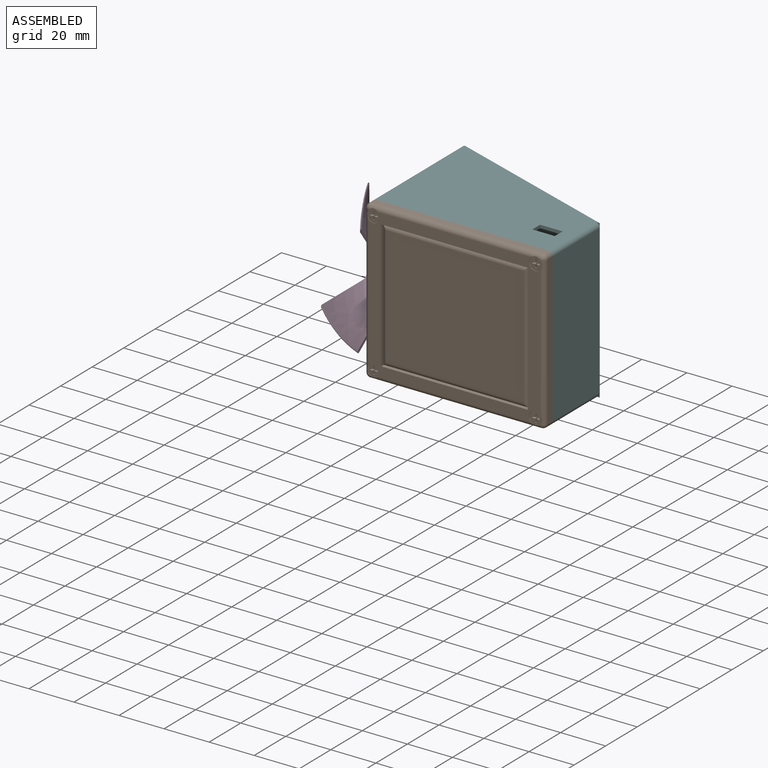
[diagram: assembled view]
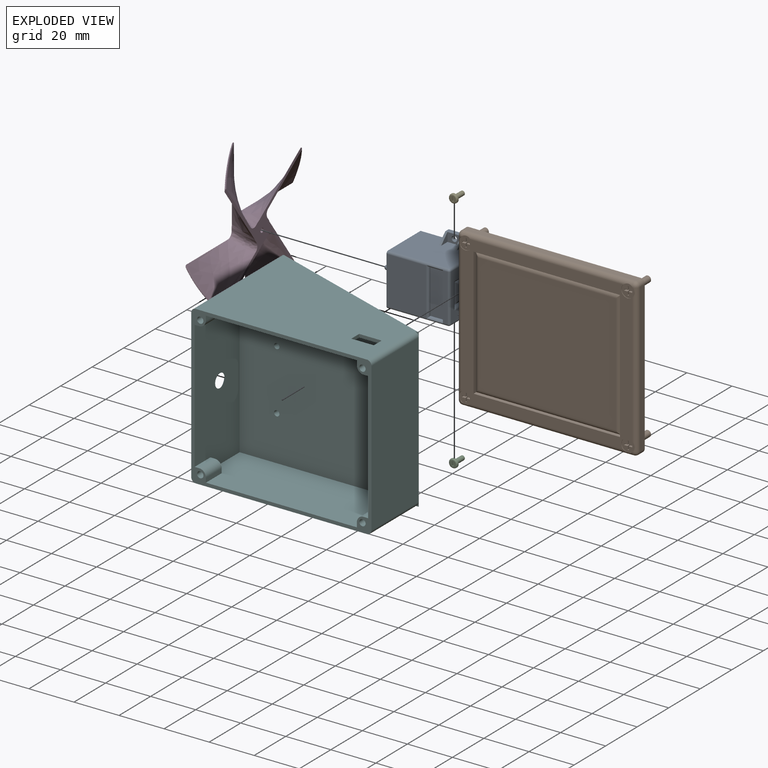
[diagram: exploded view]
GUIDED TOUR — MATED ASSEMBLY WITH SUBASSEMBLIES (Onshape document ab6bb87379f36e90b75c5dd7, AutoMate assembly ab6bb87379f36e90b75c5dd7_9b15f9d7cb4c715bf9bfc902_723ae6bca913845a0ec390ba_default)

This assembly has 15 component occurrences arranged in 6 top-level units: 4 individual components plus 2 subassemblies (S0, S1). The tour has two levels: first the top level, where each subassembly is treated as one rigid unit; then each subassembly is toured internally in its own section (nesting deeper than one subassembly level is flattened into its subassembly's section).

Components are labeled P0..P14 across the whole record; subassembly units are labeled S0..S1. A mate is a constraint between two units; its type names the relative motion it leaves free:
  FASTENED — locks the two components together rigidly (no relative motion).
Axis/direction vectors are unit vectors and 'through' points are millimeter coordinates, both in the assembly's world frame.

TOP-LEVEL MATES (between units; each subassembly's internal mates are listed in its own section)
  1. FASTENED "Fastened 1": S0 <-> P9, direction (0.000, 1.000, 0.000) through (-19.87, 3.13, -12.89) mm
  2. FASTENED "Fastened 3": P5 <-> S0, direction (0.000, 1.000, 0.000) through (-19.87, 0.93, 14.11) mm
  3. FASTENED "Fastened 6": P4 <-> S0, direction (1.000, 0.000, 0.000) through (-37.87, -9.42, 0.61) mm
  4. FASTENED "Fastened 4": P3 <-> S0, direction (0.000, 1.000, 0.000) through (-19.87, 0.93, -12.89) mm

TOP-LEVEL ASSEMBLY ORDER
  1. S0 — the base component [order heuristic]
  2. S1 — core [order heuristic]
  3. P9 — core [order heuristic]
  4. P4 [order verified]
  5. P5 [order verified]
  6. P3 [order verified]
(P4 verified with a relaxed clearance tolerance: the source model stores slight part interference there.)
Order-tag legend:
  [order verified] — this step's position reverses a verified removal order: the component was checked to insert without passing through the ones already placed.
  [order heuristic] — the first 3 components form the assembly's core: parts whose collision-free extraction could not be verified, listed in mate-graph order.

Of the 15 component occurrences, 7 carry the full construction recipe — the FeatureScript program that regenerates the part's solid from scratch; the rest are supplied as boundary geometry only. Each toured unit is shown spotlighted twice — assembled, then exploded with a leader line back to its socket (green = recipe-attached component, orange = geometry-only, blue = subassembly unit; the rest desaturated gray).
NOTE — this tour is split across 2 documents so each fits a 32k-token context. This is document 1: the component sections continue in the remaining 1 document, each repeating the header above.
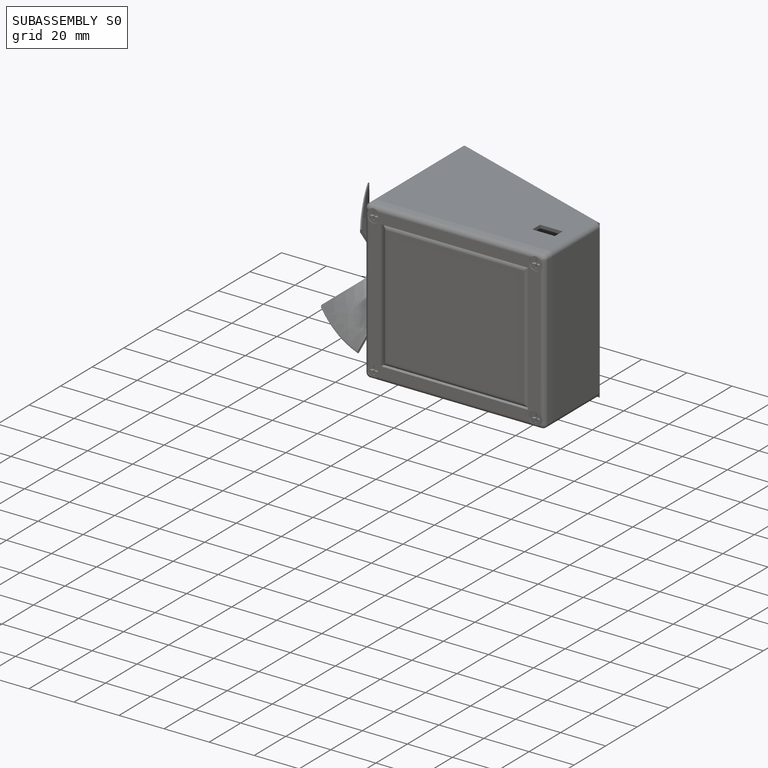
[diagram: subassembly S0 — assembled]
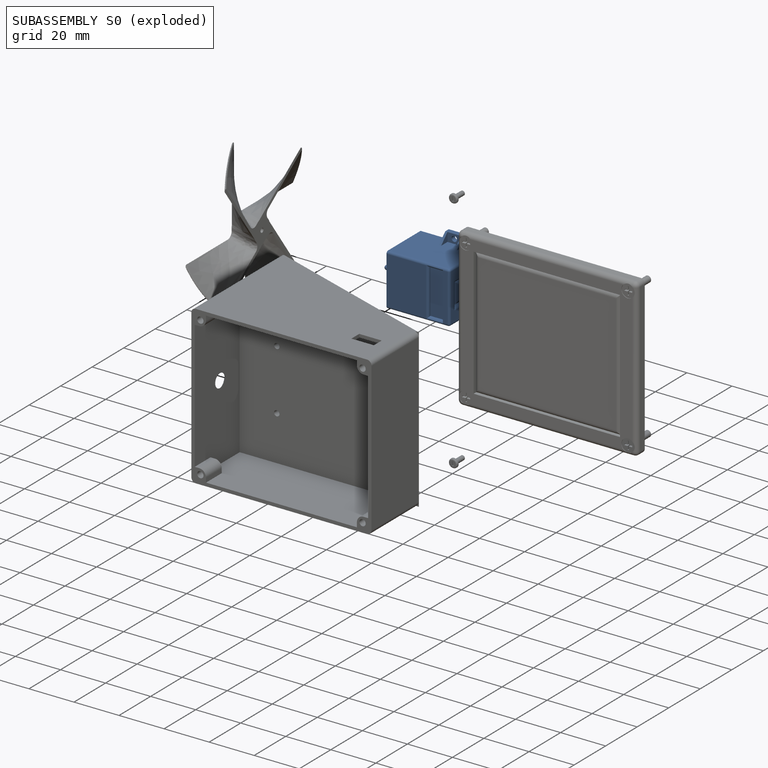
[diagram: subassembly S0 — exploded]
SUBASSEMBLY S0 — 5 components (P0, P7, P10, P11, P13), of which 1 recipe-attached; toured below.
Held by: FASTENED mate "Fastened 1" to P9; FASTENED mate "Fastened 3" to P5; FASTENED mate "Fastened 6" to P4; FASTENED mate "Fastened 4" to P3.
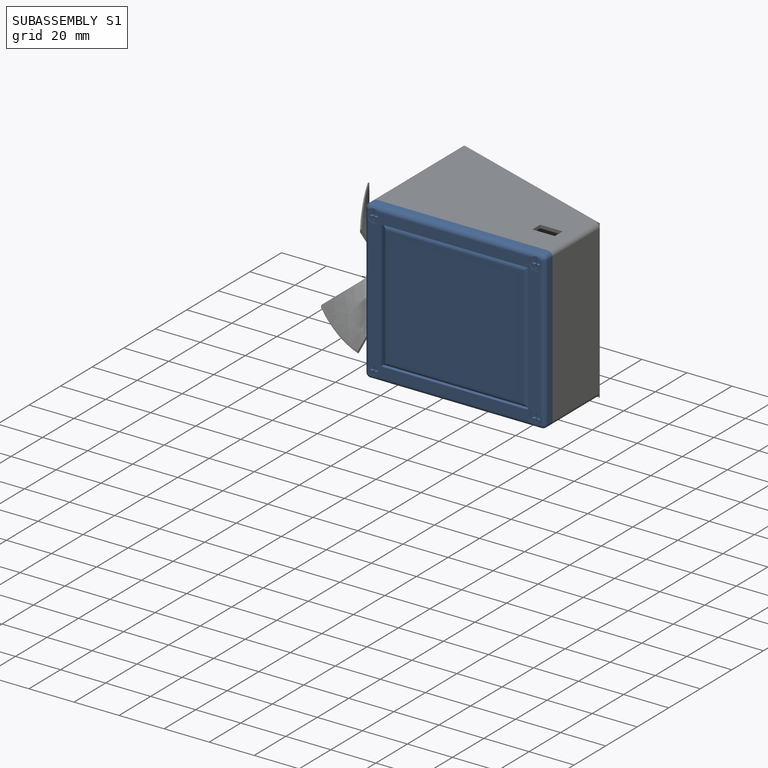
[diagram: subassembly S1 — assembled]
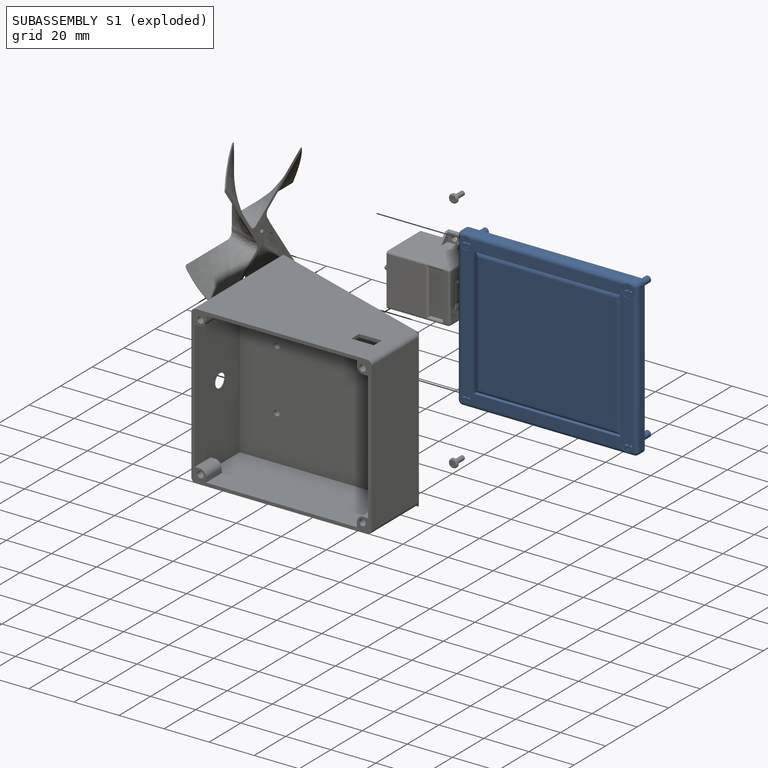
[diagram: subassembly S1 — exploded]
SUBASSEMBLY S1 — 6 components (P1, P2, P6, P8, P12, P14), of which 6 recipe-attached; toured below.
Held by: no mates (free).
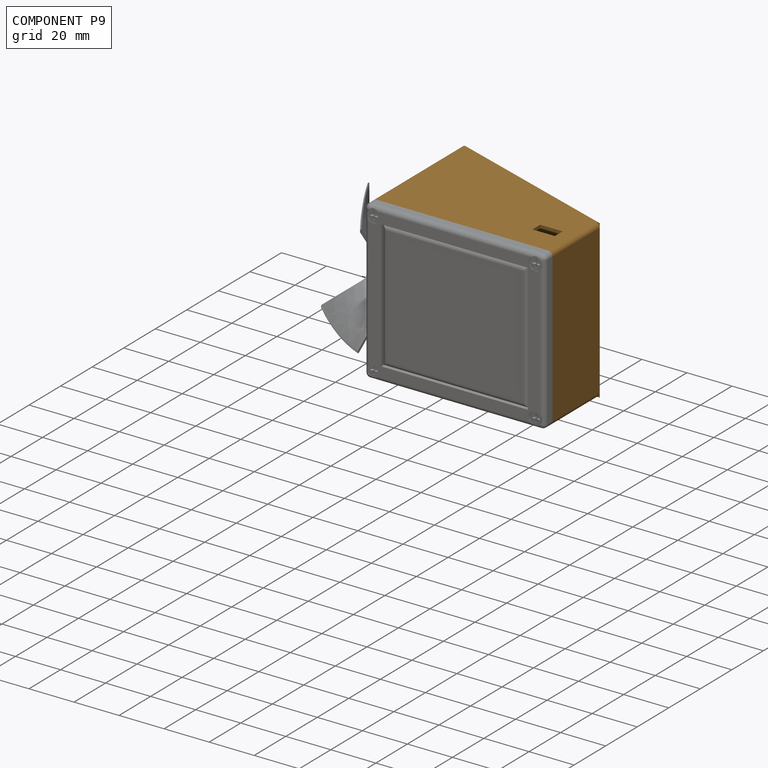
[diagram: component P9 — assembled]
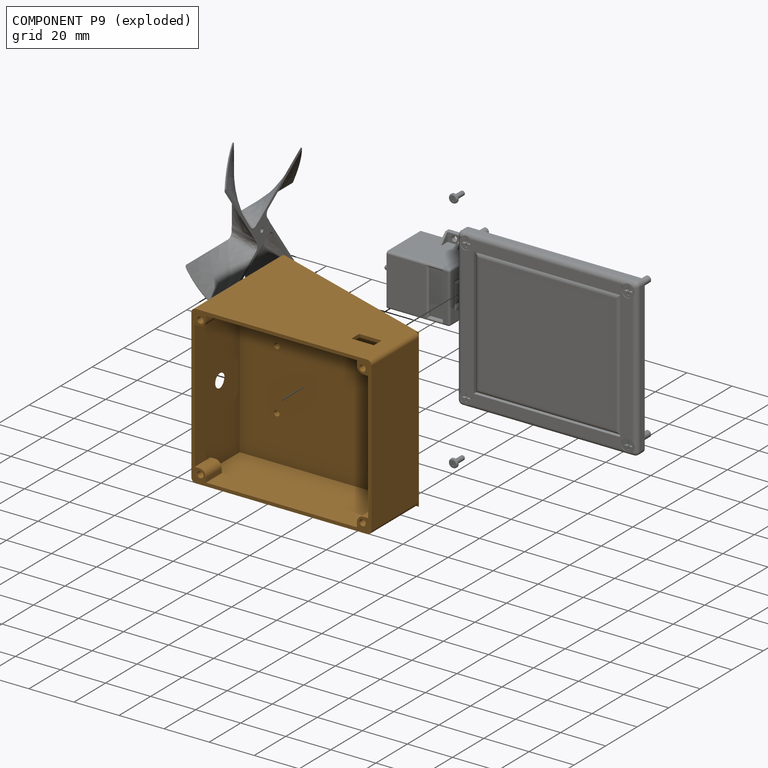
[diagram: component P9 — exploded]
COMPONENT P9 — geometry summary (no construction recipe available for this part):
  bounding box: 80.0 x 70.0 x 57.0 mm
  B-rep topology: 1 solid, 54 faces, 286 edges
  volume: 34951 mm^3 (11% of its bounding box)
Held by: FASTENED mate "Fastened 1" to P0.
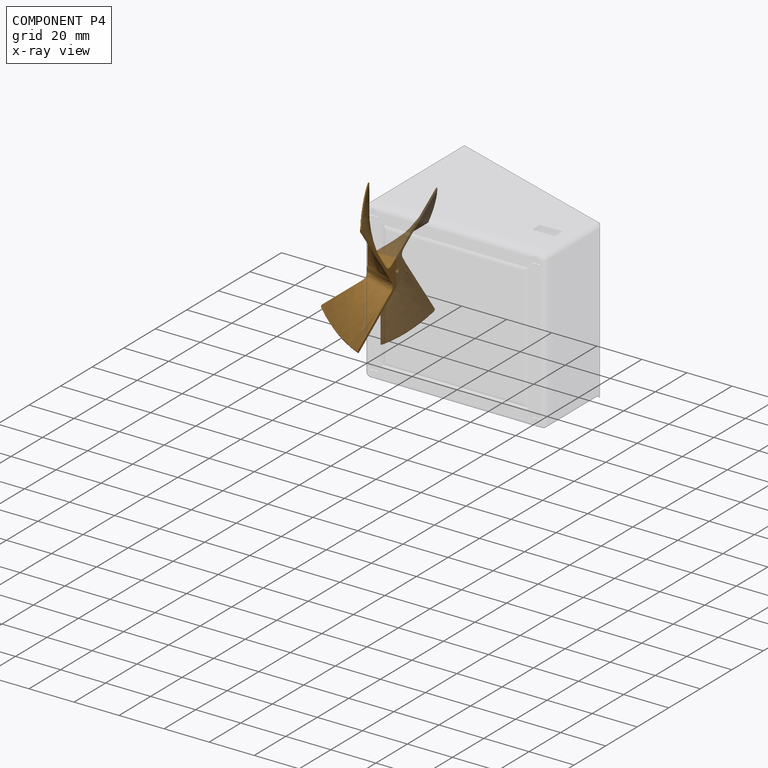
[diagram: component P4 — x-ray view]
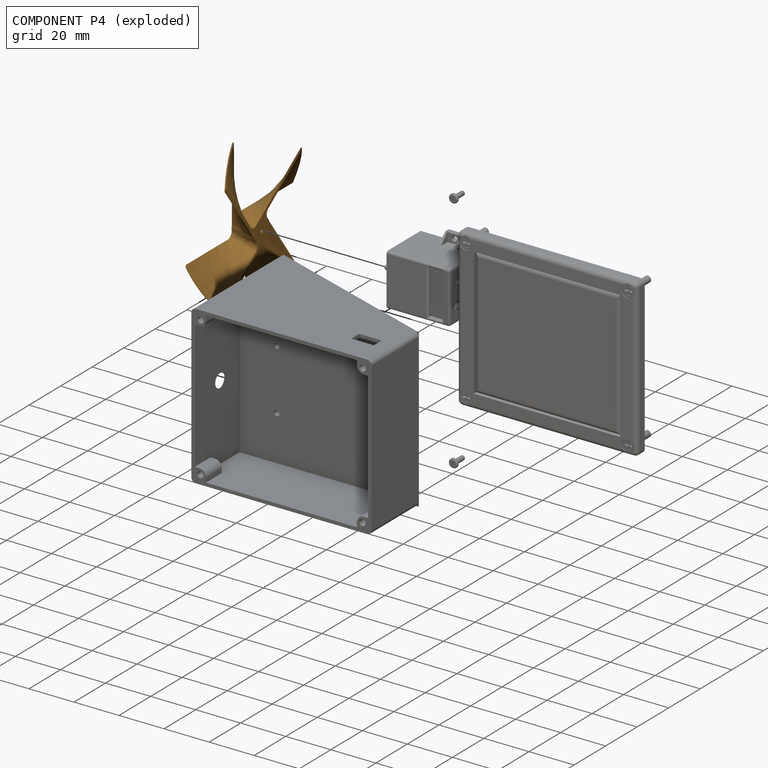
[diagram: component P4 — exploded]
COMPONENT P4 — geometry summary (no construction recipe available for this part):
  bounding box: 89.4 x 89.4 x 34.4 mm
  B-rep topology: 1 solid, 29 faces, 155 edges
  volume: 2391 mm^3 (1% of its bounding box)
  symmetry: 4-fold rotationally symmetric about the z axis
Held by: FASTENED mate "Fastened 6" to P0.
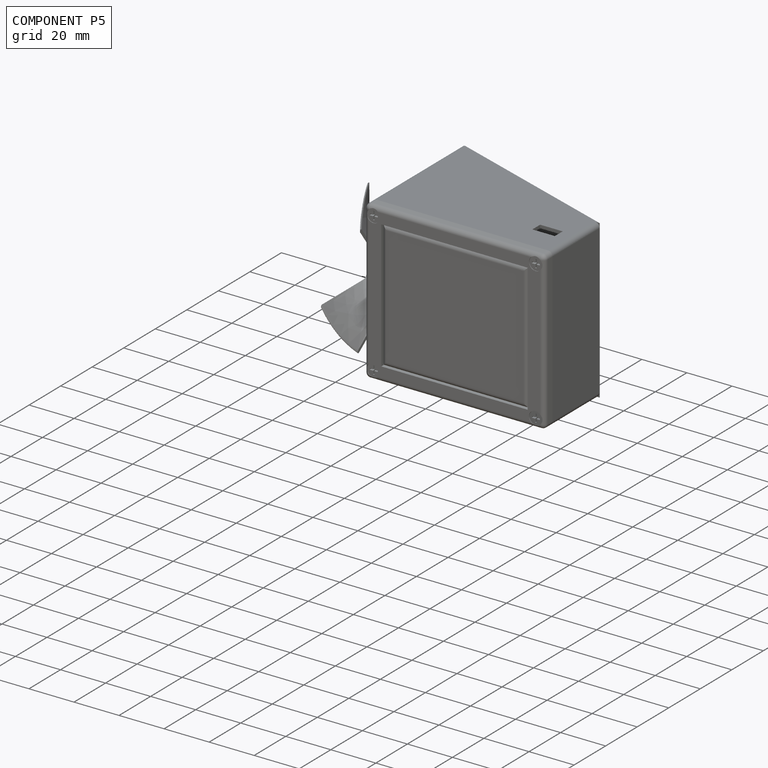
[diagram: component P5 — assembled]
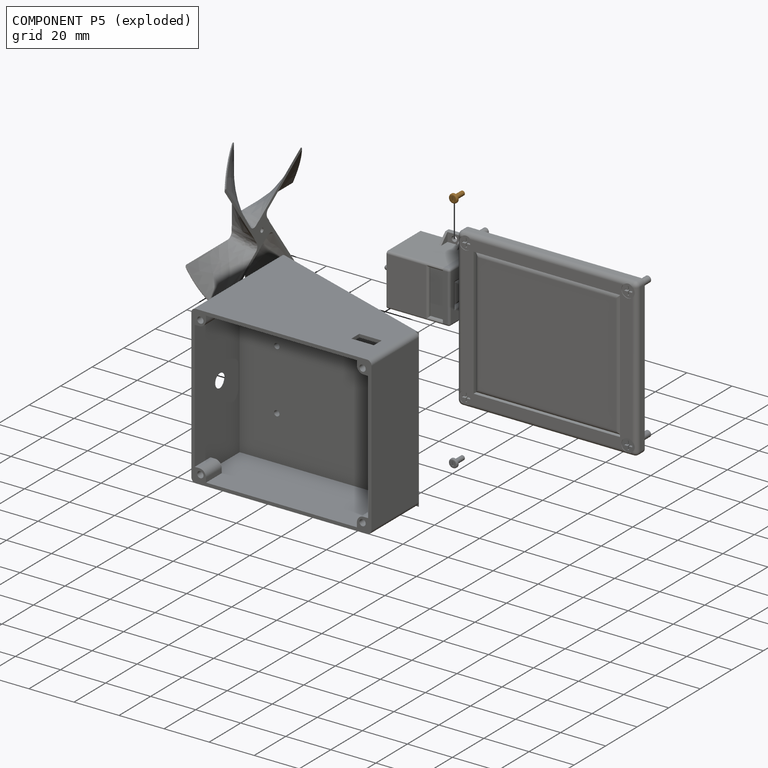
[diagram: component P5 — exploded]
COMPONENT P5 — geometry summary (no construction recipe available for this part):
  bounding box: 6.3 x 4.2 x 4.2 mm
  B-rep topology: 1 solid, 11 faces, 42 edges
  volume: 27 mm^3 (24% of its bounding box)
  symmetry: 2-fold rotationally symmetric about the y axis; mirror-symmetric across its x mid-plane, z mid-plane
Held by: FASTENED mate "Fastened 3" to P0.
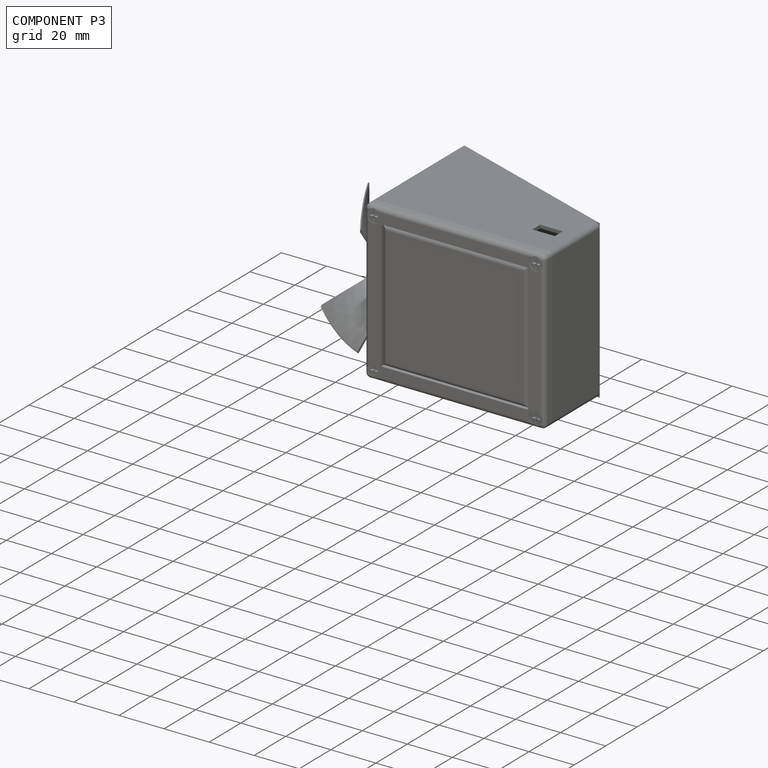
[diagram: component P3 — assembled]
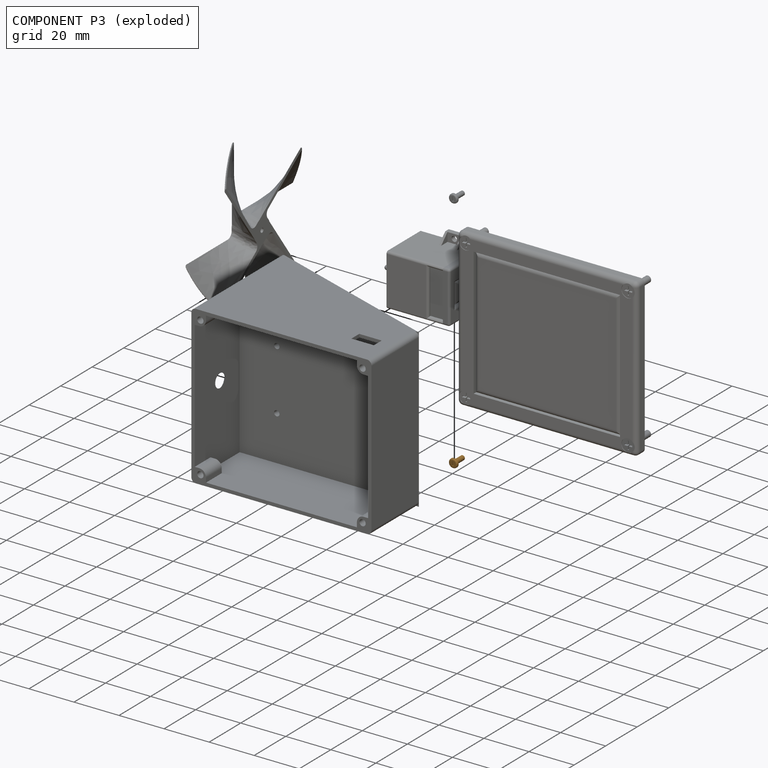
[diagram: component P3 — exploded]
COMPONENT P3 — geometry summary (no construction recipe available for this part):
  bounding box: 6.3 x 4.2 x 4.2 mm
  B-rep topology: 1 solid, 11 faces, 42 edges
  volume: 27 mm^3 (24% of its bounding box)
  symmetry: 2-fold rotationally symmetric about the y axis; mirror-symmetric across its x mid-plane, z mid-plane
Held by: FASTENED mate "Fastened 4" to P0.
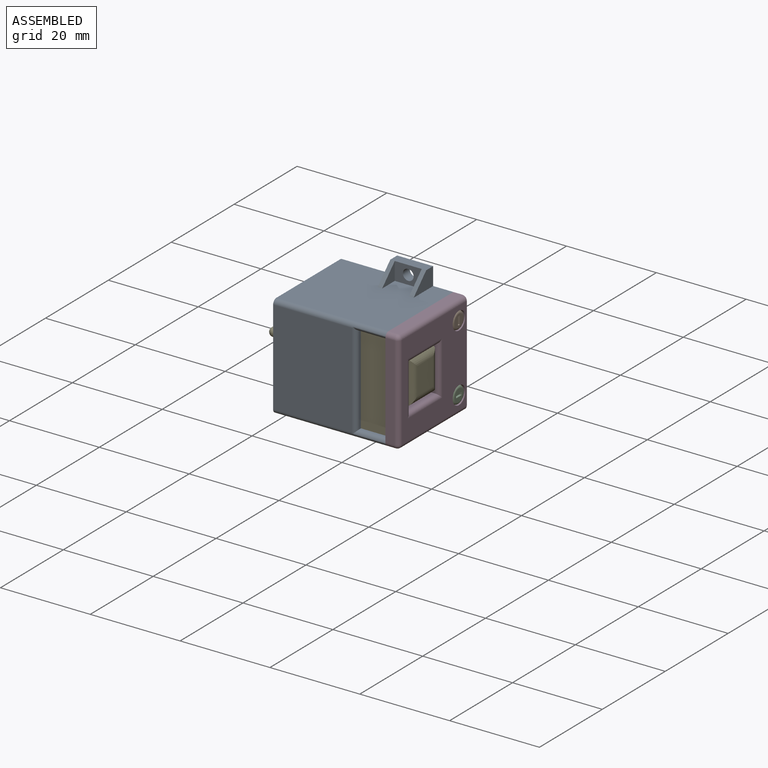
[diagram: subassembly S0 — assembled view]
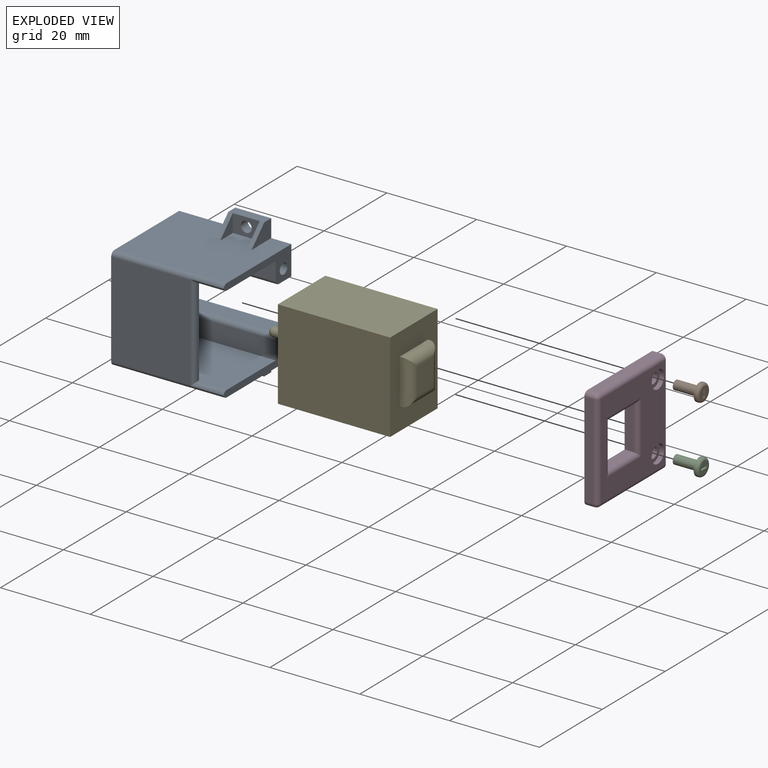
[diagram: subassembly S0 — exploded view]
SUBASSEMBLY S0 TOUR — 5 components, shown here in isolation at its own camera.

INTERNAL MATES
  1. FASTENED "Fastened 2": P11 <-> P0, direction (-1.000, 0.000, 0.000) through (-11.37, 0.63, 8.11) mm
  2. FASTENED "Fastened 2": P10 <-> P11, direction (-1.000, 0.000, 0.000) through (-9.37, 0.63, -6.89) mm
  3. FASTENED "Fastened 3": P7 <-> P11, direction (-1.000, 0.000, 0.000) through (-9.37, 0.63, 8.11) mm
  4. FASTENED "Fastened 4": P13 <-> P0, direction (0.000, -1.000, 0.000) through (-23.87, -16.97, 0.61) mm

ASSEMBLY ORDER (within the subassembly)
  1. P13 — the base component [order verified]
  2. P0 [order verified]
  3. P11 [order verified]
  4. P7 [order verified]
  5. P10 [order verified]
Order-tag legend:
  [order verified] — this step's position reverses a verified removal order: the component was checked to insert without passing through the ones already placed.
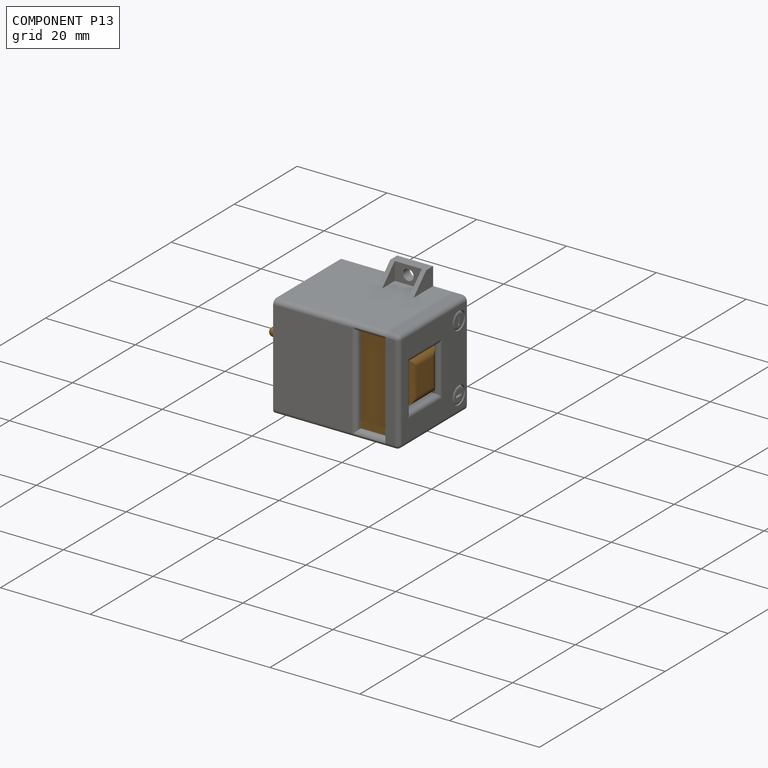
[diagram: component P13 — assembled]
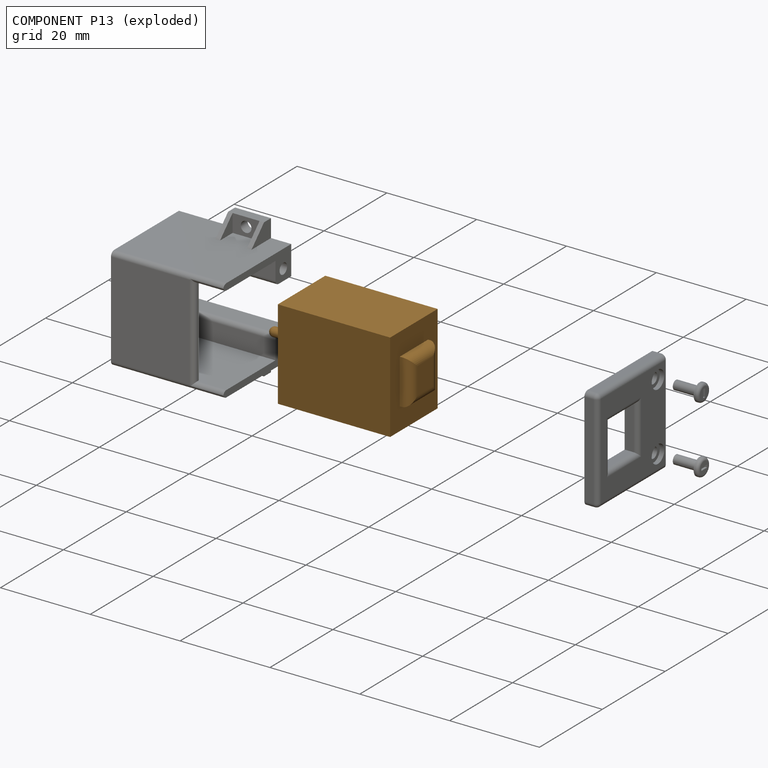
[diagram: component P13 — exploded]
COMPONENT P13 — geometry summary (no construction recipe available for this part):
  bounding box: 34.5 x 20.0 x 15.1 mm
  B-rep topology: 1 solid, 19 faces, 81 edges
  volume: 7804 mm^3 (75% of its bounding box)
  symmetry: 2-fold rotationally symmetric about the y axis; mirror-symmetric across its x mid-plane, z mid-plane
Held by: FASTENED mate "Fastened 4" to P0.
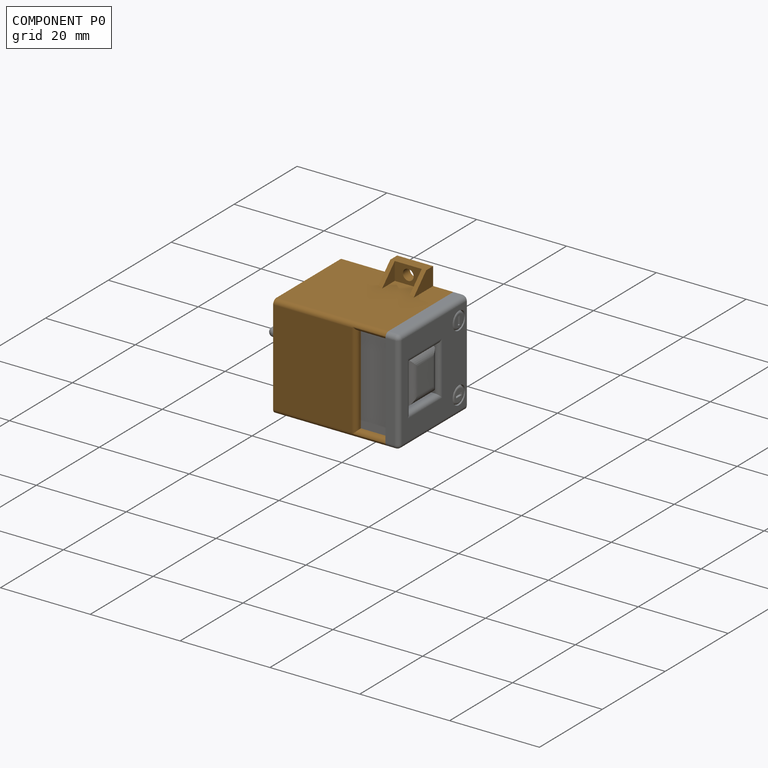
[diagram: component P0 — assembled]
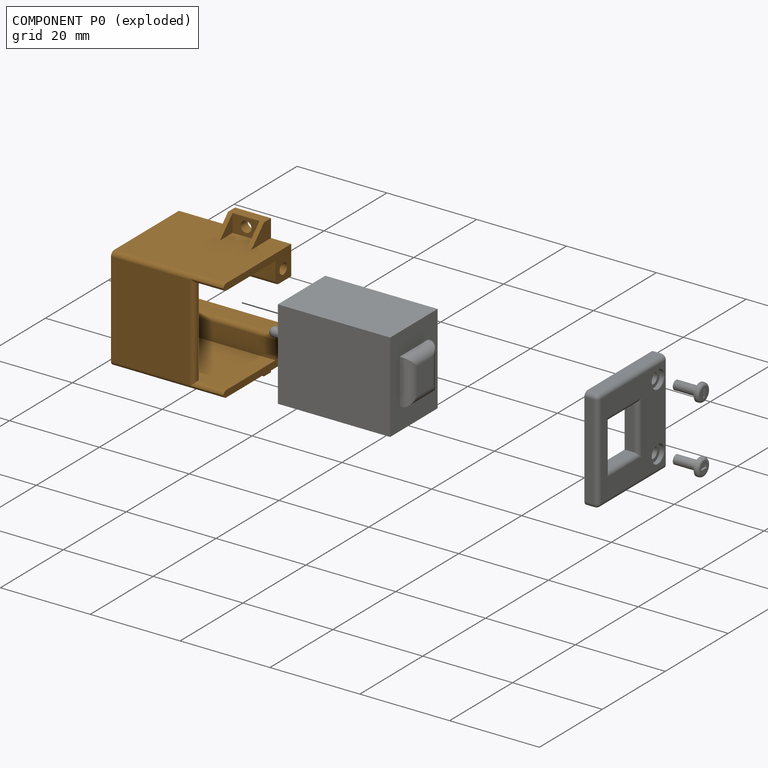
[diagram: component P0 — exploded]
COMPONENT P0 — geometry summary (no construction recipe available for this part):
  bounding box: 31.0 x 25.0 x 21.6 mm
  B-rep topology: 1 solid, 45 faces, 240 edges
  volume: 3511 mm^3 (21% of its bounding box)
  symmetry: mirror-symmetric across its x mid-plane
Held by: FASTENED mate "Fastened 2" to P11; FASTENED mate "Fastened 4" to P13.
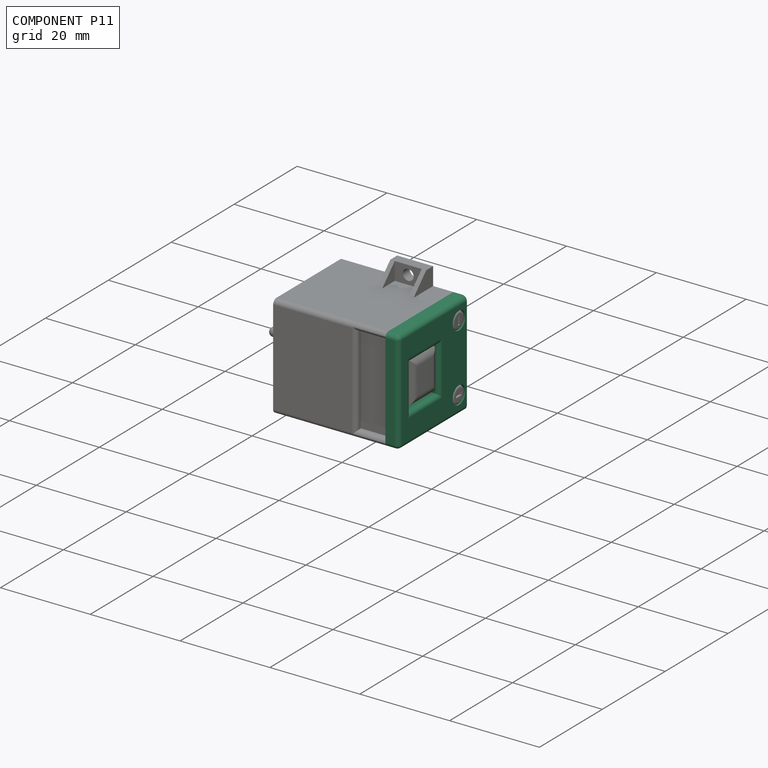
[diagram: component P11 — assembled]
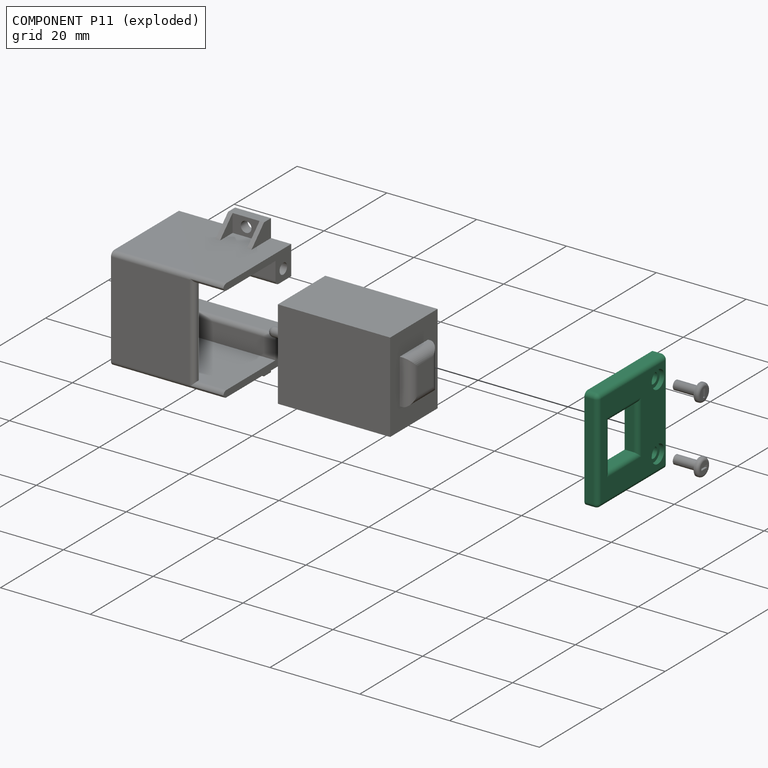
[diagram: component P11 — exploded]
COMPONENT P11 — recipe-attached (CADFS 00412371, mesh-verified: the recipe's output STEP matches this component's geometry to below the mesh-comparison resolution (tessellation chordal tolerance ~0.0475 mm)).
Held by: FASTENED mate "Fastened 2" to P0; FASTENED mate "Fastened 2" to P10; FASTENED mate "Fastened 3" to P7.
Construction recipe (FeatureScript — the CAD program that rebuilds this solid; sketch coordinates are in the units given by the * unit suffixes, e.g. mm):

FeatureScript 1511;
import(path : "onshape/std/geometry.fs", version : "1511.0");
import(path : "onshape/std/common.fs", version : "1511.0");
const mm = millimeter;
const VERTEX = EntityType.VERTEX;
const EDGE = EntityType.EDGE;
const FACE = EntityType.FACE;
const BODY = EntityType.BODY;
function v(x, y){return vector(x, y);}
function OD(order){return orderDisambiguation(order);}
function OSD(set){return originalSetDisambiguation(set);}
function TD(topology){return topologyDisambiguation(topology);}
function TDD(query){return trueDependencyDisambiguation(query);}
function sQuery(a, b, c) {return sketchEntityQuery(a, b, c);}

annotation { "Feature Type Name" : "Feature", "Feature Type Description" : "" }
export const myFeature = defineFeature(function(context is Context, id is Id, definition is map)
    precondition{}
    {
        {
            var Q0;
            Q0=qCreatedBy(makeId("Front.planeOp"),FACE);
            var sketch = newSketch(context, id + "F0", { "sketchPlane" : qUnion([Q0])});
            skLineSegment(sketch, "E0.bottom", {"start": v(11.5, -10.8) * mm, "end": v(-11.5, -10.8) * mm});
            skLineSegment(sketch, "E0.top", {"start": v(11.5, 10.8) * mm, "end": v(-11.5, 10.8) * mm});
            skLineSegment(sketch, "E0.left", {"start": v(11.5, -10.8) * mm, "end": v(11.5, 10.8) * mm});
            skLineSegment(sketch, "E0.right", {"start": v(-11.5, -10.8) * mm, "end": v(-11.5, 10.8) * mm});
            skPoint(sketch, "E0.middle", {"position": v(0, 0) * mm});
            skLineSegment(sketch, "E1", {"start": v(11.5, -5.8) * mm, "end": v(-11.5, -5.8) * mm});
            skLineSegment(sketch, "E2.bottom", {"start": v(5, -2) * mm, "end": v(-5, -2) * mm});
            skLineSegment(sketch, "E2.top", {"start": v(5, 7) * mm, "end": v(-5, 7) * mm});
            skLineSegment(sketch, "E2.left", {"start": v(5, -2) * mm, "end": v(5, 7) * mm});
            skLineSegment(sketch, "E2.right", {"start": v(-5, -2) * mm, "end": v(-5, 7) * mm});
            skPoint(sketch, "E2.middle", {"position": v(0, 2.5) * mm});
            skLineSegment(sketch, "E3", {"start": v(-5, -5.8) * mm, "end": v(-5, -10.8) * mm});
            skLineSegment(sketch, "E4", {"start": v(5, -5.8) * mm, "end": v(5, -10.8) * mm});
            skPoint(sketch, "E5", {"position": v(-7.5, -8.3) * mm});
            skPoint(sketch, "E6", {"position": v(7.5, -8.3) * mm});
            skSolve(sketch);
        }
        {
            var Q0;
            Q0=makeQuery(id+"F0.imprint","IMPRINT",FACE,{"disambiguationData":[TD([[makeQuery(id+"F0.imprint","IMPRINT",EDGE,{"derivedFrom":sQuery(id+"F0.wireOp",EDGE,"E0.bottom")}),-1.0]])]});
            var Q1;
            {var subQ4=sQuery(id+"F0.wireOp",EDGE,"XXghgsD0-yHl0-RBd0-iBPM-BPhgWZTttXul");Q1=makeQuery(id+"F0.imprint","IMPRINT",FACE,{"disambiguationData":[TD([[makeQuery(id+"F0.imprint","IMPRINT",EDGE,{"derivedFrom":subQ4}),1.0]])]});}
            var Q2;
            {var subQ4=sQuery(id+"F0.wireOp",EDGE,"E0.left");var subQ5=sQuery(id+"F0.wireOp",EDGE,"E0.top");var subQ6=makeQuery(id+"F0.imprint","INTERSECT",VERTEX,{"derivedFrom":[subQ5,subQ4]});Q2=makeQuery(id+"F0.imprint","IMPRINT",FACE,{"disambiguationData":[TD([[makeQuery(id+"F0.imprint","IMPRINT",EDGE,{"disambiguationData":[TD([[subQ6,-1.0]])],"derivedFrom":subQ5}),1.0]])]});}
            var Q3;
            {var subQ7=sQuery(id+"F0.wireOp",EDGE,"rV4kGlWL-xtz4-GXx9-zthC-AsMHhICjl7HH");Q3=makeQuery(id+"F0.imprint","IMPRINT",FACE,{"disambiguationData":[TD([[makeQuery(id+"F0.imprint","IMPRINT",EDGE,{"derivedFrom":subQ7}),-1.0]])]});}
            var Q4;
            {var subQ3=sQuery(id+"F0.wireOp",EDGE,"XXghgsD0-yHl0-RBd0-iBPM-BPhgWZTttXul");Q4=makeQuery(id+"F0.imprint","IMPRINT",FACE,{"disambiguationData":[TD([[makeQuery(id+"F0.imprint","IMPRINT",EDGE,{"derivedFrom":subQ3}),-1.0]])]});}
            extrude(context, id + "F1", {"entities" : qUnion([Q0, Q1, Q2, Q3, Q4]), "depth" : 3 * mm});
        }
        {
            var Q0;
            Q0=sQuery(id+"F0.wireOp",VERTEX,"E6");
            var Q1;
            Q1=sQuery(id+"F0.wireOp",VERTEX,"E5");
            var Q2;
            Q2=makeQuery(id+"F1.opExtrude","SWEPT_BODY",BODY,{"disambiguationData":[OSD([sQuery(id+"F0.wireOp",EDGE,"E0.bottom"),sQuery(id+"F0.wireOp",EDGE,"E0.top"),sQuery(id+"F0.wireOp",EDGE,"E0.left"),sQuery(id+"F0.wireOp",EDGE,"E0.right"),sQuery(id+"F0.wireOp",EDGE,"E2.bottom"),sQuery(id+"F0.wireOp",EDGE,"E2.top"),sQuery(id+"F0.wireOp",EDGE,"E2.left"),sQuery(id+"F0.wireOp",EDGE,"E2.right")])]});
            hole(context, id + "F2", {"style" : HoleStyle.C_BORE, "endStyle" : HoleEndStyle.BLIND, "oppositeDirection" : true, "holeDiameter" : 2.4 * mm, "cBoreDiameter" : 4 * mm, "cBoreDepth" : 1 * mm, "holeDepth" : 3 * mm, "locations" : qUnion([Q0, Q1]), "scope" : qUnion([Q2])});
        }
        {
            var Q0;
            Q0=makeQuery(id+"F1.opExtrude","CAP_EDGE",EDGE,{"disambiguationData":[OSD([sQuery(id+"F0.wireOp",EDGE,"E0.right")])],"isStart":true});
            var Q1;
            Q1=makeQuery(id+"F1.opExtrude","CAP_EDGE",EDGE,{"disambiguationData":[OSD([sQuery(id+"F0.wireOp",EDGE,"E0.top")])],"isStart":true});
            var Q2;
            Q2=makeQuery(id+"F1.opExtrude","SWEPT_EDGE",EDGE,{"disambiguationData":[OSD([sQuery(id+"F0.wireOp",EDGE,"E0.top"),sQuery(id+"F0.wireOp",EDGE,"E0.left")])]});
            var Q3;
            Q3=makeQuery(id+"F1.opExtrude","SWEPT_EDGE",EDGE,{"disambiguationData":[OSD([sQuery(id+"F0.wireOp",EDGE,"E0.top"),sQuery(id+"F0.wireOp",EDGE,"E0.right")])]});
            var Q4;
            Q4=makeQuery(id+"F1.opExtrude","CAP_EDGE",EDGE,{"disambiguationData":[OSD([sQuery(id+"F0.wireOp",EDGE,"E0.left")])],"isStart":true});
            var Q5;
            Q5=makeQuery(id+"F1.opExtrude","CAP_EDGE",EDGE,{"disambiguationData":[OSD([sQuery(id+"F0.wireOp",EDGE,"E2.right")])],"isStart":true});
            var Q6;
            Q6=makeQuery(id+"F1.opExtrude","CAP_EDGE",EDGE,{"disambiguationData":[OSD([sQuery(id+"F0.wireOp",EDGE,"E2.top")])],"isStart":true});
            var Q7;
            Q7=makeQuery(id+"F1.opExtrude","CAP_EDGE",EDGE,{"disambiguationData":[OSD([sQuery(id+"F0.wireOp",EDGE,"E2.left")])],"isStart":true});
            var Q8;
            Q8=makeQuery(id+"F1.opExtrude","CAP_EDGE",EDGE,{"disambiguationData":[OSD([sQuery(id+"F0.wireOp",EDGE,"E2.bottom")])],"isStart":true});
            fillet(context, id + "F3", {"entities" : qUnion([Q0, Q1, Q2, Q3, Q4, Q5, Q6, Q7, Q8]), "radius" : 1 * mm, "tangentPropagation" : true, "allowEdgeOverflow" : false});
        }
    });
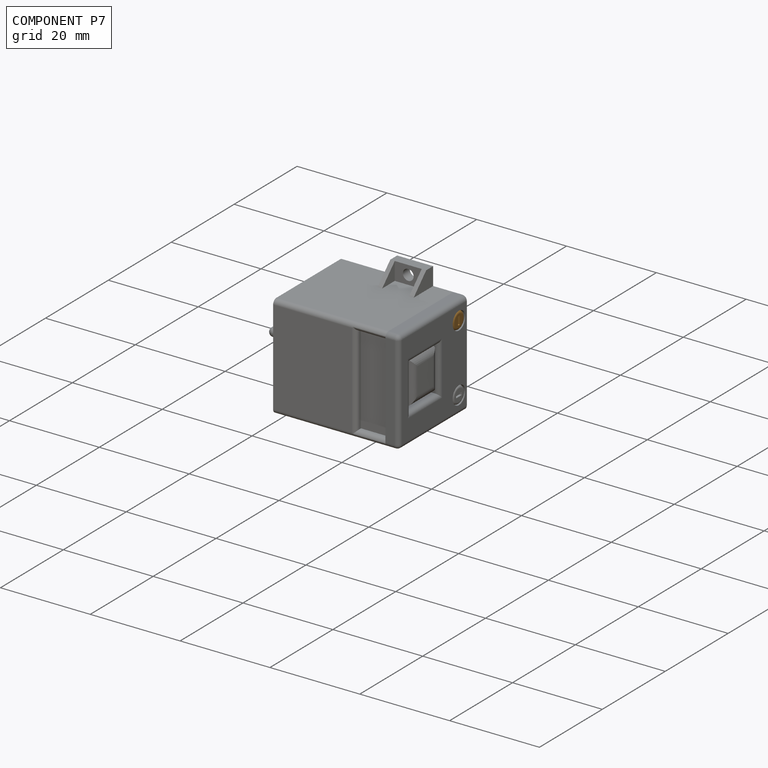
[diagram: component P7 — assembled]
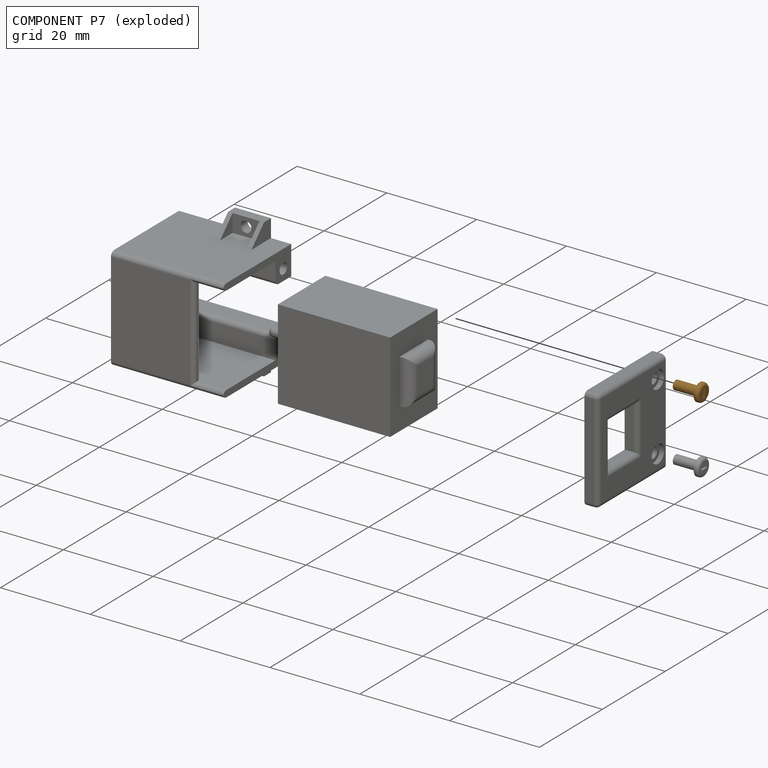
[diagram: component P7 — exploded]
COMPONENT P7 — geometry summary (no construction recipe available for this part):
  bounding box: 6.3 x 4.2 x 4.2 mm
  B-rep topology: 1 solid, 11 faces, 42 edges
  volume: 27 mm^3 (24% of its bounding box)
  symmetry: 2-fold rotationally symmetric about the y axis; mirror-symmetric across its x mid-plane, z mid-plane
Held by: FASTENED mate "Fastened 3" to P11.
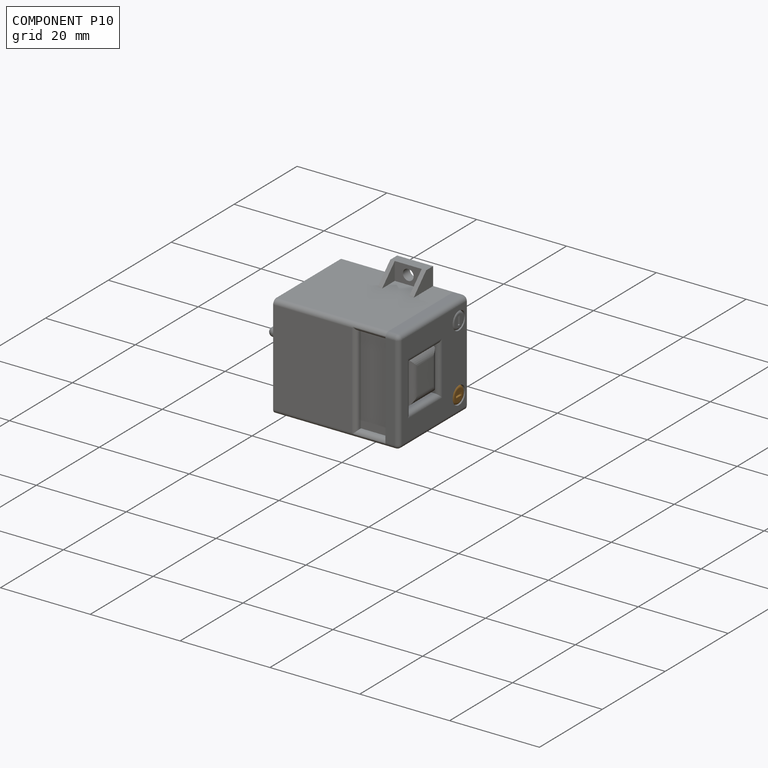
[diagram: component P10 — assembled]
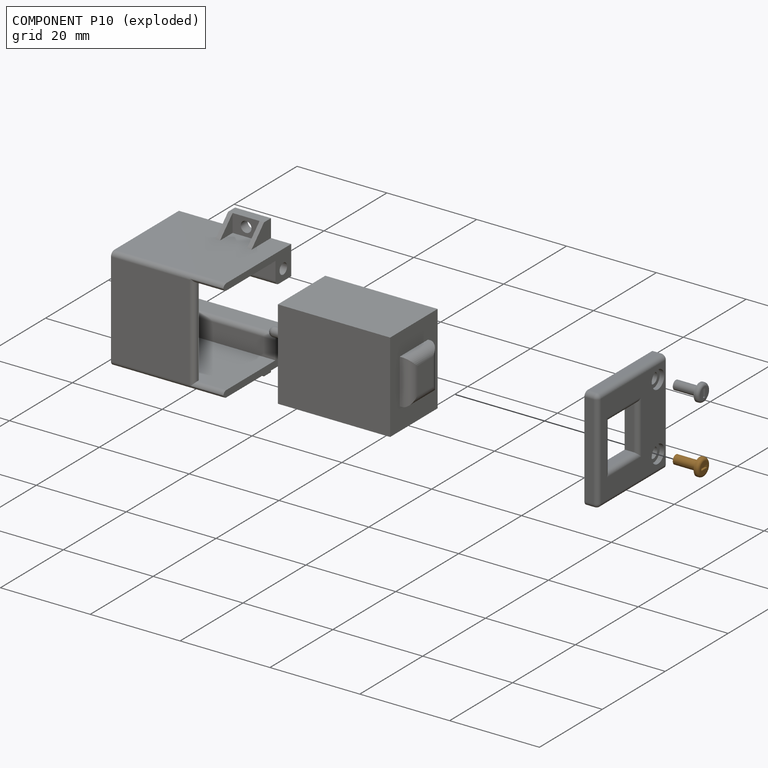
[diagram: component P10 — exploded]
COMPONENT P10 — geometry summary (no construction recipe available for this part):
  bounding box: 6.3 x 4.2 x 4.2 mm
  B-rep topology: 1 solid, 11 faces, 42 edges
  volume: 27 mm^3 (24% of its bounding box)
  symmetry: 2-fold rotationally symmetric about the y axis; mirror-symmetric across its x mid-plane, z mid-plane
Held by: FASTENED mate "Fastened 2" to P11.
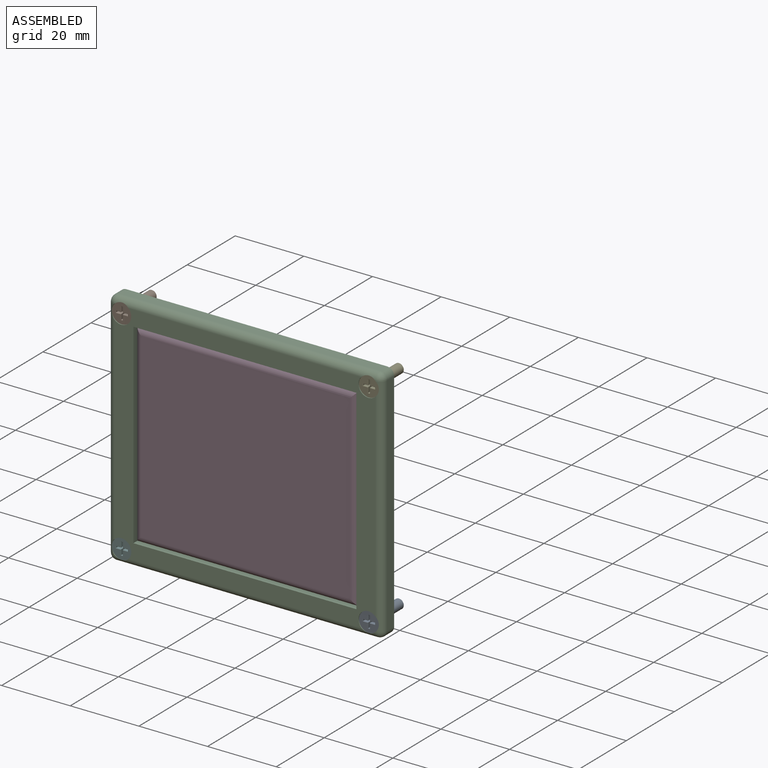
[diagram: subassembly S1 — assembled view]
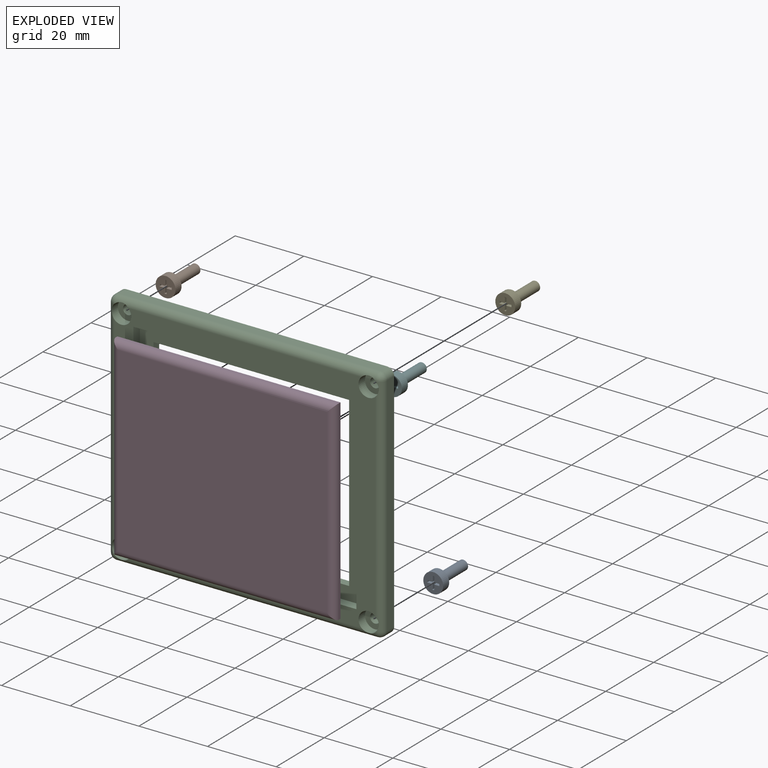
[diagram: subassembly S1 — exploded view]
SUBASSEMBLY S1 TOUR — 6 components, shown here in isolation at its own camera.

INTERNAL MATES
  1. FASTENED "Fastened 5": P2 <-> P6, direction (0.000, 1.000, 0.000) through (-33.87, -27.65, 31.61) mm
  2. FASTENED "Fastened 2": P12 <-> P6, direction (0.000, 1.000, 0.000) through (38.13, -27.65, 31.61) mm
  3. FASTENED "Fastened 3": P14 <-> P6, direction (0.000, 1.000, 0.000) through (-33.87, -27.65, -30.39) mm
  4. FASTENED "Fastened 1": P8 <-> P6, direction (0.000, 1.000, 0.000) through (2.13, -27.37, 0.61) mm
  5. FASTENED "Fastened 4": P1 <-> P6, direction (0.000, 1.000, 0.000) through (38.13, -27.65, -30.39) mm
  6. FASTENED "Fastened 5": P2 <-> P6, direction (0.000, 1.000, 0.000) through (-33.87, -27.65, 31.61) mm
  7. FASTENED "Fastened 4": P1 <-> P6, direction (0.000, 1.000, 0.000) through (38.13, -27.65, -30.39) mm
  8. FASTENED "Fastened 3": P14 <-> P6, direction (0.000, 1.000, 0.000) through (-33.87, -27.65, -30.39) mm
  9. FASTENED "Fastened 1": P8 <-> P6, direction (0.000, 1.000, 0.000) through (2.13, -27.37, 0.61) mm
  10. FASTENED "Fastened 2": P12 <-> P6, direction (0.000, 1.000, 0.000) through (38.13, -27.65, 31.61) mm

ASSEMBLY ORDER (within the subassembly)
  1. P6 — the base component [order heuristic]
  2. P1 [order heuristic]
  3. P2 [order heuristic]
  4. P8 [order heuristic]
  5. P12 [order heuristic]
  6. P14 [order heuristic]
Order-tag legend:
  [order heuristic] — this assembly is geometrically interlocked (no collision-free removal order exists), so components are listed in mate-graph order; insertion feasibility is not verified.
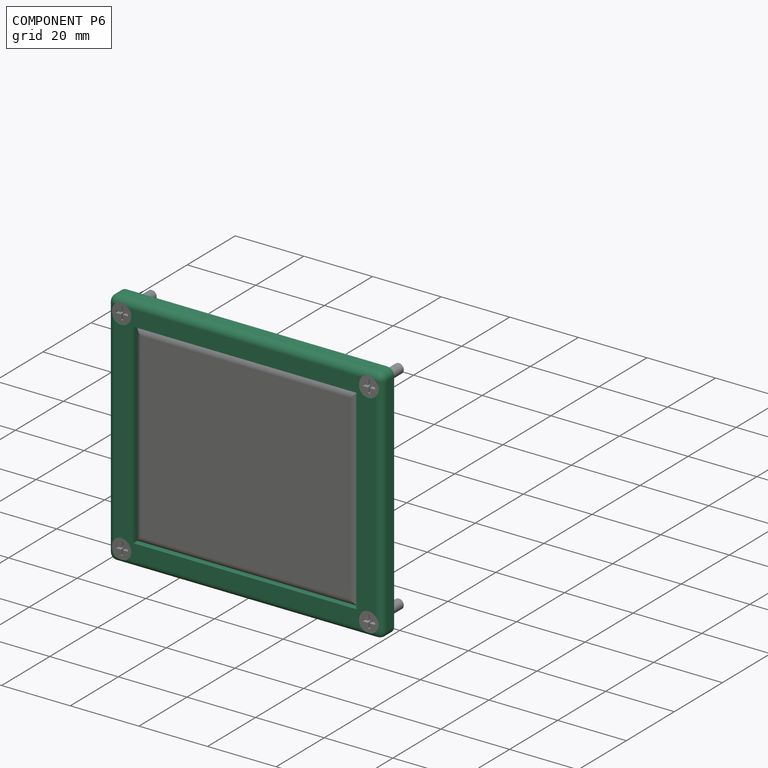
[diagram: component P6 — assembled]
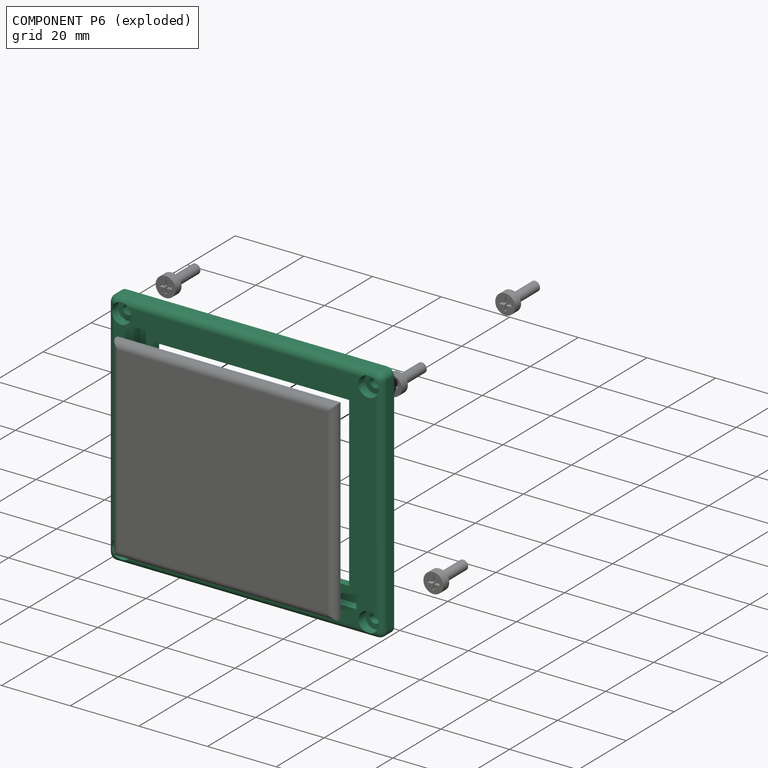
[diagram: component P6 — exploded]
COMPONENT P6 — recipe-attached (CADFS 00138051, mesh-verified: the recipe's output STEP matches this component's geometry to below the mesh-comparison resolution (tessellation chordal tolerance ~0.16 mm)).
Held by: FASTENED mate "Fastened 5" to P2; FASTENED mate "Fastened 2" to P12; FASTENED mate "Fastened 3" to P14; FASTENED mate "Fastened 1" to P8; FASTENED mate "Fastened 4" to P1; FASTENED mate "Fastened 5" to P2; FASTENED mate "Fastened 4" to P1; FASTENED mate "Fastened 3" to P14; FASTENED mate "Fastened 1" to P8; FASTENED mate "Fastened 2" to P12.
Construction recipe (FeatureScript — the CAD program that rebuilds this solid; sketch coordinates are in the units given by the * unit suffixes, e.g. mm):

FeatureScript 2581;
import(path : "onshape/std/geometry.fs", version : "2581.0");
import(path : "onshape/std/common.fs", version : "2581.0");
const mm = millimeter;
const VERTEX = EntityType.VERTEX;
const EDGE = EntityType.EDGE;
const FACE = EntityType.FACE;
const BODY = EntityType.BODY;
function v(x, y){return vector(x, y);}
function OD(order){return orderDisambiguation(order);}
function OSD(set){return originalSetDisambiguation(set);}
function TD(topology){return topologyDisambiguation(topology);}
function TDD(query){return trueDependencyDisambiguation(query);}
function sQuery(a, b, c) {return sketchEntityQuery(a, b, c);}

annotation { "Feature Type Name" : "Feature", "Feature Type Description" : "" }
export const myFeature = defineFeature(function(context is Context, id is Id, definition is map)
    precondition{}
    {
        {
            var Q0;
            Q0=qCreatedBy(makeId("Front.planeOp"),FACE);
            var sketch = newSketch(context, id + "F0", { "sketchPlane" : qUnion([Q0])});
            skLineSegment(sketch, "E0.bottom", {"start": v(40, -35) * mm, "end": v(-40, -35) * mm});
            skLineSegment(sketch, "E0.top", {"start": v(40, 35) * mm, "end": v(-40, 35) * mm});
            skLineSegment(sketch, "E0.left", {"start": v(40, -35) * mm, "end": v(40, 35) * mm});
            skLineSegment(sketch, "E0.right", {"start": v(-40, -35) * mm, "end": v(-40, 35) * mm});
            skPoint(sketch, "E0.middle", {"position": v(0, 0) * mm});
            skLineSegment(sketch, "E1", {"start": v(32.5, -28.5) * mm, "end": v(-32.5, -28.5) * mm});
            skLineSegment(sketch, "E2", {"start": v(-32.5, -28.5) * mm, "end": v(-32.5, 28.5) * mm});
            skLineSegment(sketch, "E3", {"start": v(-32.5, 28.5) * mm, "end": v(32.5, 28.5) * mm});
            skLineSegment(sketch, "E4", {"start": v(32.5, 28.5) * mm, "end": v(32.5, -28.5) * mm});
            skLineSegment(sketch, "E5", {"start": v(-30.5, 26.5) * mm, "end": v(-30.5, -26.5) * mm});
            skLineSegment(sketch, "E6", {"start": v(-30.5, -26.5) * mm, "end": v(30.5, -26.5) * mm});
            skLineSegment(sketch, "E7", {"start": v(30.5, -26.5) * mm, "end": v(30.5, 26.5) * mm});
            skLineSegment(sketch, "E8", {"start": v(30.5, 26.5) * mm, "end": v(-30.5, 26.5) * mm});
            skSolve(sketch);
        }
        {
            var Q0;
            Q0=makeQuery(id+"F0.imprint","IMPRINT",FACE,{"disambiguationData":[TD([[makeQuery(id+"F0.imprint","IMPRINT",EDGE,{"derivedFrom":sQuery(id+"F0.wireOp",EDGE,"E0.bottom")}),-1.0]])]});
            extrude(context, id + "F1", {"entities" : qUnion([Q0]), "depth" : 5 * mm});
        }
        {
            var Q0;
            Q0=makeQuery(id+"F1.opExtrude","CAP_EDGE",EDGE,{"disambiguationData":[OSD([sQuery(id+"F0.wireOp",EDGE,"E0.top")])],"isStart":true});
            var Q1;
            Q1=makeQuery(id+"F1.opExtrude","CAP_EDGE",EDGE,{"disambiguationData":[OSD([sQuery(id+"F0.wireOp",EDGE,"E0.right")])],"isStart":true});
            var Q2;
            Q2=makeQuery(id+"F1.opExtrude","SWEPT_EDGE",EDGE,{"disambiguationData":[OSD([sQuery(id+"F0.wireOp",EDGE,"E0.top"),sQuery(id+"F0.wireOp",EDGE,"E0.right")])]});
            var Q3;
            Q3=makeQuery(id+"F1.opExtrude","CAP_EDGE",EDGE,{"disambiguationData":[OSD([sQuery(id+"F0.wireOp",EDGE,"E0.bottom")])],"isStart":true});
            var Q4;
            Q4=makeQuery(id+"F1.opExtrude","SWEPT_EDGE",EDGE,{"disambiguationData":[OSD([sQuery(id+"F0.wireOp",EDGE,"E0.bottom"),sQuery(id+"F0.wireOp",EDGE,"E0.right")])]});
            var Q5;
            Q5=makeQuery(id+"F1.opExtrude","CAP_EDGE",EDGE,{"disambiguationData":[OSD([sQuery(id+"F0.wireOp",EDGE,"E0.left")])],"isStart":true});
            var Q6;
            Q6=makeQuery(id+"F1.opExtrude","SWEPT_EDGE",EDGE,{"disambiguationData":[OSD([sQuery(id+"F0.wireOp",EDGE,"E0.bottom"),sQuery(id+"F0.wireOp",EDGE,"E0.left")])]});
            var Q7;
            Q7=makeQuery(id+"F1.opExtrude","SWEPT_EDGE",EDGE,{"disambiguationData":[OSD([sQuery(id+"F0.wireOp",EDGE,"E0.top"),sQuery(id+"F0.wireOp",EDGE,"E0.left")])]});
            fillet(context, id + "F2", {"entities" : qUnion([Q0, Q1, Q2, Q3, Q4, Q5, Q6, Q7]), "radius" : 2 * mm, "tangentPropagation" : true, "allowEdgeOverflow" : false});
        }
        {
            var Q0;
            Q0=makeQuery(id+"F1.opExtrude","CAP_FACE",FACE,{"disambiguationData":[OSD([sQuery(id+"F0.wireOp",EDGE,"E0.bottom"),sQuery(id+"F0.wireOp",EDGE,"E0.top"),sQuery(id+"F0.wireOp",EDGE,"E0.left"),sQuery(id+"F0.wireOp",EDGE,"E0.right")])],"isStart":true});
            cPlane(context, id + "F3", {"entities" : qUnion([Q0]), "cplaneType" : CPlaneType.OFFSET, "offset" : 0 * mm, "width" : 150 * mm, "height" : 150 * mm});
        }
        {
            var Q0;
            Q0=qCreatedBy(id+"F3.planeOp",FACE);
            var sketch = newSketch(context, id + "F4", { "sketchPlane" : qUnion([Q0])});
            skPoint(sketch, "E9", {"position": v(-36, -31) * mm});
            skPoint(sketch, "E10", {"position": v(-36, 31) * mm});
            skPoint(sketch, "E11", {"position": v(36, 31) * mm});
            skPoint(sketch, "E12", {"position": v(36, -31) * mm});
            skSolve(sketch);
        }
        {
            var Q0;
            Q0=sQuery(id+"F4.wireOp",VERTEX,"E9");
            var Q1;
            Q1=sQuery(id+"F4.wireOp",VERTEX,"E10");
            var Q2;
            Q2=sQuery(id+"F4.wireOp",VERTEX,"E11");
            var Q3;
            Q3=sQuery(id+"F4.wireOp",VERTEX,"E12");
            var Q4;
            Q4=makeQuery(id+"F1.opExtrude","SWEPT_BODY",BODY,{"disambiguationData":[OSD([sQuery(id+"F0.wireOp",EDGE,"E0.bottom"),sQuery(id+"F0.wireOp",EDGE,"E0.top"),sQuery(id+"F0.wireOp",EDGE,"E0.left"),sQuery(id+"F0.wireOp",EDGE,"E0.right")])]});
            hole(context, id + "F5", {"style" : HoleStyle.C_BORE, "endStyle" : HoleEndStyle.BLIND, "holeDiameter" : 2.8 * mm, "cBoreDiameter" : 5.8 * mm, "cBoreDepth" : 2.5 * mm, "holeDepth" : 5 * mm, "locations" : qUnion([Q0, Q1, Q2, Q3]), "scope" : qUnion([Q4]), "tappedDepth" : 12 * mm, "tapClearance" : 3, "startStyle" : HoleStartStyle.PART});
        }
        {
            var Q0;
            Q0=makeQuery(id+"F1.opExtrude","CAP_FACE",FACE,{"disambiguationData":[OSD([sQuery(id+"F0.wireOp",EDGE,"E0.bottom"),sQuery(id+"F0.wireOp",EDGE,"E0.top"),sQuery(id+"F0.wireOp",EDGE,"E0.left"),sQuery(id+"F0.wireOp",EDGE,"E0.right"),sQuery(id+"F0.wireOp",EDGE,"E1"),sQuery(id+"F0.wireOp",EDGE,"E2"),sQuery(id+"F0.wireOp",EDGE,"E3"),sQuery(id+"F0.wireOp",EDGE,"E4")])],"isStart":false});
            cPlane(context, id + "F6", {"entities" : qUnion([Q0]), "cplaneType" : CPlaneType.OFFSET, "offset" : 0 * mm, "width" : 150 * mm, "height" : 150 * mm});
        }
        {
            var Q0;
            Q0=qCreatedBy(id+"F6.planeOp",FACE);
            var sketch = newSketch(context, id + "F7", { "sketchPlane" : qUnion([Q0])});
            skLineSegment(sketch, "E13.bottom", {"start": v(40, -35) * mm, "end": v(-40, -35) * mm});
            skLineSegment(sketch, "E13.top", {"start": v(40, 35) * mm, "end": v(-40, 35) * mm});
            skLineSegment(sketch, "E13.left", {"start": v(40, -35) * mm, "end": v(40, 35) * mm});
            skLineSegment(sketch, "E13.right", {"start": v(-40, -35) * mm, "end": v(-40, 35) * mm});
            skPoint(sketch, "E13.middle", {"position": v(0, 0) * mm});
            skLineSegment(sketch, "E14", {"start": v(-28.5, 24.5) * mm, "end": v(-28.5, -24.5) * mm});
            skLineSegment(sketch, "E15", {"start": v(-28.5, -24.5) * mm, "end": v(28.5, -24.5) * mm});
            skLineSegment(sketch, "E16", {"start": v(28.5, -24.5) * mm, "end": v(28.5, 24.5) * mm});
            skLineSegment(sketch, "E17", {"start": v(28.5, 24.5) * mm, "end": v(-28.5, 24.5) * mm});
            skLineSegment(sketch, "E18.bottom", {"start": v(-32.5, -28.5) * mm, "end": v(32.5, -28.5) * mm});
            skLineSegment(sketch, "E18.top", {"start": v(-32.5, 28.5) * mm, "end": v(32.5, 28.5) * mm});
            skLineSegment(sketch, "E18.left", {"start": v(-32.5, -28.5) * mm, "end": v(-32.5, 28.5) * mm});
            skLineSegment(sketch, "E18.right", {"start": v(32.5, -28.5) * mm, "end": v(32.5, 28.5) * mm});
            skSolve(sketch);
        }
        {
            var Q0;
            Q0=makeQuery(id+"F7.imprint","IMPRINT",FACE,{"disambiguationData":[TD([[makeQuery(id+"F7.imprint","IMPRINT",EDGE,{"derivedFrom":sQuery(id+"F7.wireOp",EDGE,"E14")}),-1.0]])]});
            extrude(context, id + "F8", {"entities" : qUnion([Q0]), "operationType" : NewBodyOperationType.ADD, "oppositeDirection" : true, "depth" : 2.3 * mm});
        }
    });
